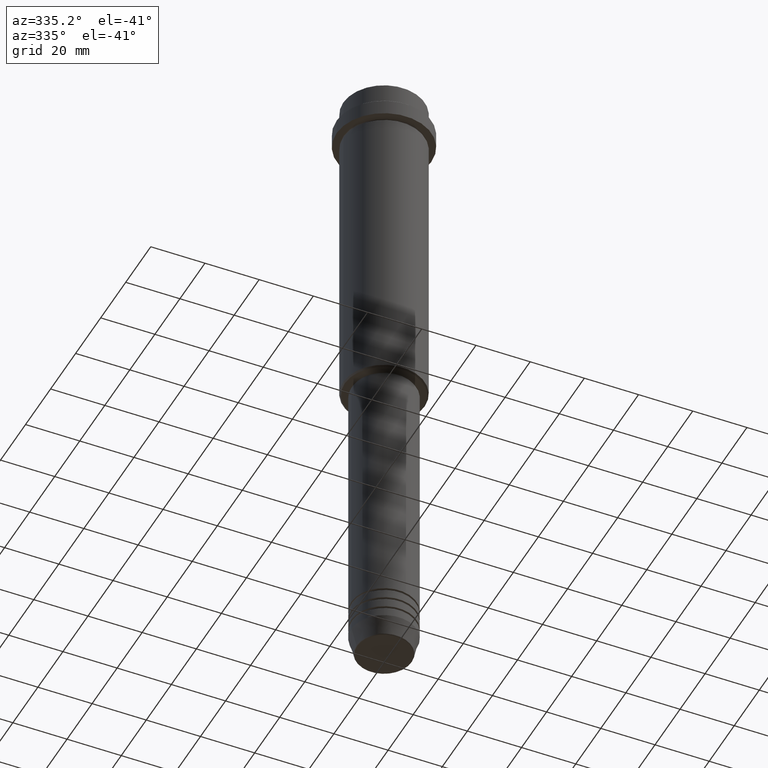
[diagram: clean part render]
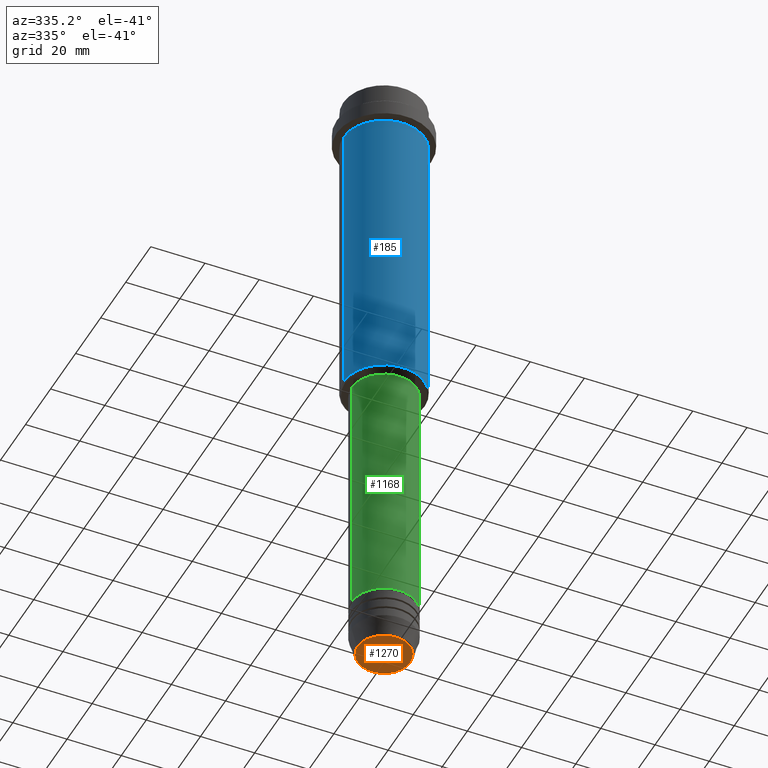
[diagram: same view with three faces highlighted in distinct colors, each labeled with its STEP entity id]
A machine part, auxiliary view with three faces highlighted in distinct colors.
Their STEP definitions:

[orange] entity #1270 — the highlighted planar face has unit normal (0, -0, 1).
#23 = VERTEX_POINT ( 'NONE', #915 ) ;
#147 = CIRCLE ( 'NONE', #949, 9.740692158992658278 ) ;
#162 = DIRECTION ( 'NONE',  ( 0.000000000000000000, 0.000000000000000000, -1.000000000000000000 ) ) ;
#169 = DIRECTION ( 'NONE',  ( 1.000000000000000000, 0.000000000000000000, 0.000000000000000000 ) ) ;
#271 = DIRECTION ( 'NONE',  ( 1.000000000000000000, 0.000000000000000000, 0.000000000000000000 ) ) ;
#282 = DIRECTION ( 'NONE',  ( 0.000000000000000000, 0.000000000000000000, -1.000000000000000000 ) ) ;
#355 = EDGE_LOOP ( 'NONE', ( #1110, #1164 ) ) ;
#718 = DIRECTION ( 'NONE',  ( 0.000000000000000000, -0.000000000000000000, 1.000000000000000000 ) ) ;
#810 = CARTESIAN_POINT ( 'NONE',  ( 0.000000000000000000, 0.000000000000000000, -240.0000000000000000 ) ) ;
#822 = FACE_OUTER_BOUND ( 'NONE', #355, .T. ) ;
#853 = CIRCLE ( 'NONE', #1194, 9.740692158992658278 ) ;
#890 = VERTEX_POINT ( 'NONE', #1246 ) ;
#911 = EDGE_CURVE ( 'NONE', #23, #890, #853, .T. ) ;
#915 = CARTESIAN_POINT ( 'NONE',  ( 9.740692158992658278, 0.000000000000000000, -240.0000000000000000 ) ) ;
#916 = PLANE ( 'NONE',  #972 ) ;
#933 = CARTESIAN_POINT ( 'NONE',  ( 0.000000000000000000, 0.000000000000000000, -240.0000000000000000 ) ) ;
#942 = DIRECTION ( 'NONE',  ( 1.000000000000000000, 0.000000000000000000, 0.000000000000000000 ) ) ;
#949 = AXIS2_PLACEMENT_3D ( 'NONE', #810, #282, #169 ) ;
#972 = AXIS2_PLACEMENT_3D ( 'NONE', #933, #718, #942 ) ;
#1110 = ORIENTED_EDGE ( 'NONE', *, *, #911, .T. ) ;
#1164 = ORIENTED_EDGE ( 'NONE', *, *, #1333, .T. ) ;
#1194 = AXIS2_PLACEMENT_3D ( 'NONE', #1266, #162, #271 ) ;
#1246 = CARTESIAN_POINT ( 'NONE',  ( -9.740692158992658278, 1.222463696683474999E-15, -240.0000000000000000 ) ) ;
#1266 = CARTESIAN_POINT ( 'NONE',  ( 0.000000000000000000, 0.000000000000000000, -240.0000000000000000 ) ) ;
#1270 = ADVANCED_FACE ( 'NONE', ( #822 ), #916, .F. ) ;
#1333 = EDGE_CURVE ( 'NONE', #890, #23, #147, .T. ) ;

[blue] entity #185 — the highlighted cylindrical surface (partial cylindrical patch) has radius 15 mm, axis along (-0, -0, 1).
#49 = VECTOR ( 'NONE', #787, 1000.000000000000000 ) ;
#71 = AXIS2_PLACEMENT_3D ( 'NONE', #611, #1174, #836 ) ;
#149 = CARTESIAN_POINT ( 'NONE',  ( -15.00000000000000355, 1.836970198721029983E-15, -16.00000000000000000 ) ) ;
#157 = CARTESIAN_POINT ( 'NONE',  ( -15.00000000000000000, 1.836970198721029589E-15, -124.4999999999999432 ) ) ;
#185 = ADVANCED_FACE ( 'NONE', ( #1393 ), #965, .T. ) ;
#243 = CIRCLE ( 'NONE', #335, 15.00000000000000000 ) ;
#268 = DIRECTION ( 'NONE',  ( -1.000000000000000000, 0.000000000000000000, 0.000000000000000000 ) ) ;
#277 = EDGE_CURVE ( 'NONE', #386, #769, #426, .T. ) ;
#335 = AXIS2_PLACEMENT_3D ( 'NONE', #500, #579, #268 ) ;
#367 = LINE ( 'NONE', #895, #49 ) ;
#386 = VERTEX_POINT ( 'NONE', #157 ) ;
#394 = CARTESIAN_POINT ( 'NONE',  ( 15.00000000000000000, 0.000000000000000000, -124.4999999999999432 ) ) ;
#398 = VECTOR ( 'NONE', #740, 1000.000000000000000 ) ;
#426 = LINE ( 'NONE', #1061, #398 ) ;
#490 = EDGE_CURVE ( 'NONE', #912, #503, #367, .T. ) ;
#500 = CARTESIAN_POINT ( 'NONE',  ( 0.000000000000000000, 0.000000000000000000, -124.4999999999999432 ) ) ;
#503 = VERTEX_POINT ( 'NONE', #1275 ) ;
#579 = DIRECTION ( 'NONE',  ( -0.000000000000000000, -0.000000000000000000, 1.000000000000000000 ) ) ;
#606 = CARTESIAN_POINT ( 'NONE',  ( 0.000000000000000000, 0.000000000000000000, -16.00000000000000000 ) ) ;
#611 = CARTESIAN_POINT ( 'NONE',  ( 0.000000000000000000, 0.000000000000000000, 0.000000000000000000 ) ) ;
#665 = CIRCLE ( 'NONE', #735, 15.00000000000000178 ) ;
#685 = ORIENTED_EDGE ( 'NONE', *, *, #824, .F. ) ;
#735 = AXIS2_PLACEMENT_3D ( 'NONE', #606, #1145, #1059 ) ;
#740 = DIRECTION ( 'NONE',  ( -0.000000000000000000, -0.000000000000000000, 1.000000000000000000 ) ) ;
#769 = VERTEX_POINT ( 'NONE', #149 ) ;
#787 = DIRECTION ( 'NONE',  ( -0.000000000000000000, -0.000000000000000000, 1.000000000000000000 ) ) ;
#824 = EDGE_CURVE ( 'NONE', #769, #503, #665, .T. ) ;
#836 = DIRECTION ( 'NONE',  ( 1.000000000000000000, 0.000000000000000000, 0.000000000000000000 ) ) ;
#895 = CARTESIAN_POINT ( 'NONE',  ( 15.00000000000000000, 0.000000000000000000, 0.000000000000000000 ) ) ;
#912 = VERTEX_POINT ( 'NONE', #394 ) ;
#965 = CYLINDRICAL_SURFACE ( 'NONE', #71, 15.00000000000000000 ) ;
#994 = ORIENTED_EDGE ( 'NONE', *, *, #490, .T. ) ;
#1027 = ORIENTED_EDGE ( 'NONE', *, *, #277, .F. ) ;
#1059 = DIRECTION ( 'NONE',  ( 1.000000000000000000, 0.000000000000000000, 0.000000000000000000 ) ) ;
#1061 = CARTESIAN_POINT ( 'NONE',  ( -15.00000000000000000, 1.836970198721029589E-15, 0.000000000000000000 ) ) ;
#1145 = DIRECTION ( 'NONE',  ( -0.000000000000000000, -0.000000000000000000, 1.000000000000000000 ) ) ;
#1154 = EDGE_LOOP ( 'NONE', ( #1027, #1345, #994, #685 ) ) ;
#1174 = DIRECTION ( 'NONE',  ( -0.000000000000000000, -0.000000000000000000, 1.000000000000000000 ) ) ;
#1275 = CARTESIAN_POINT ( 'NONE',  ( 15.00000000000000178, 0.000000000000000000, -16.00000000000000000 ) ) ;
#1345 = ORIENTED_EDGE ( 'NONE', *, *, #1395, .T. ) ;
#1393 = FACE_OUTER_BOUND ( 'NONE', #1154, .T. ) ;
#1395 = EDGE_CURVE ( 'NONE', #386, #912, #243, .T. ) ;

[green] entity #1168 — the highlighted cylindrical surface (edge-blend (fillet) strip) has radius 12 mm, axis along (-0, -0, 1).
#86 = EDGE_CURVE ( 'NONE', #1239, #727, #966, .T. ) ;
#135 = ORIENTED_EDGE ( 'NONE', *, *, #86, .T. ) ;
#153 = DIRECTION ( 'NONE',  ( -0.000000000000000000, -0.000000000000000000, 1.000000000000000000 ) ) ;
#200 = AXIS2_PLACEMENT_3D ( 'NONE', #1130, #1111, #773 ) ;
#309 = CARTESIAN_POINT ( 'NONE',  ( -12.00000000000000000, 1.469576158976823947E-15, 0.000000000000000000 ) ) ;
#350 = AXIS2_PLACEMENT_3D ( 'NONE', #419, #1067, #629 ) ;
#381 = VECTOR ( 'NONE', #840, 1000.000000000000000 ) ;
#419 = CARTESIAN_POINT ( 'NONE',  ( 0.000000000000000000, 0.000000000000000000, -220.9999999999998579 ) ) ;
#437 = CARTESIAN_POINT ( 'NONE',  ( 12.00000000000000000, 0.000000000000000000, -220.9999999999998579 ) ) ;
#450 = CIRCLE ( 'NONE', #518, 11.99999999999999822 ) ;
#453 = CARTESIAN_POINT ( 'NONE',  ( -12.00000000000000000, 1.469576158976823947E-15, -220.9999999999998579 ) ) ;
#454 = EDGE_LOOP ( 'NONE', ( #1416, #135, #732, #566 ) ) ;
#518 = AXIS2_PLACEMENT_3D ( 'NONE', #816, #153, #1355 ) ;
#560 = VERTEX_POINT ( 'NONE', #593 ) ;
#566 = ORIENTED_EDGE ( 'NONE', *, *, #1303, .F. ) ;
#592 = VERTEX_POINT ( 'NONE', #1149 ) ;
#593 = CARTESIAN_POINT ( 'NONE',  ( -11.99999999999999822, 1.469576158976823750E-15, -126.0000000000000000 ) ) ;
#629 = DIRECTION ( 'NONE',  ( 1.000000000000000000, 0.000000000000000000, 0.000000000000000000 ) ) ;
#634 = EDGE_CURVE ( 'NONE', #727, #592, #902, .T. ) ;
#673 = CARTESIAN_POINT ( 'NONE',  ( 12.00000000000000000, 0.000000000000000000, 0.000000000000000000 ) ) ;
#727 = VERTEX_POINT ( 'NONE', #437 ) ;
#732 = ORIENTED_EDGE ( 'NONE', *, *, #634, .T. ) ;
#773 = DIRECTION ( 'NONE',  ( 1.000000000000000000, 0.000000000000000000, 0.000000000000000000 ) ) ;
#816 = CARTESIAN_POINT ( 'NONE',  ( 0.000000000000000000, 0.000000000000000000, -126.0000000000000000 ) ) ;
#829 = VECTOR ( 'NONE', #974, 1000.000000000000000 ) ;
#840 = DIRECTION ( 'NONE',  ( -0.000000000000000000, -0.000000000000000000, 1.000000000000000000 ) ) ;
#862 = LINE ( 'NONE', #309, #381 ) ;
#902 = LINE ( 'NONE', #673, #829 ) ;
#955 = EDGE_CURVE ( 'NONE', #1239, #560, #862, .T. ) ;
#966 = CIRCLE ( 'NONE', #350, 12.00000000000000000 ) ;
#974 = DIRECTION ( 'NONE',  ( -0.000000000000000000, -0.000000000000000000, 1.000000000000000000 ) ) ;
#1067 = DIRECTION ( 'NONE',  ( -0.000000000000000000, -0.000000000000000000, 1.000000000000000000 ) ) ;
#1111 = DIRECTION ( 'NONE',  ( -0.000000000000000000, -0.000000000000000000, 1.000000000000000000 ) ) ;
#1123 = CYLINDRICAL_SURFACE ( 'NONE', #200, 12.00000000000000000 ) ;
#1130 = CARTESIAN_POINT ( 'NONE',  ( 0.000000000000000000, 0.000000000000000000, 0.000000000000000000 ) ) ;
#1149 = CARTESIAN_POINT ( 'NONE',  ( 11.99999999999999822, 0.000000000000000000, -126.0000000000000000 ) ) ;
#1168 = ADVANCED_FACE ( 'NONE', ( #1315 ), #1123, .T. ) ;
#1239 = VERTEX_POINT ( 'NONE', #453 ) ;
#1303 = EDGE_CURVE ( 'NONE', #560, #592, #450, .T. ) ;
#1315 = FACE_OUTER_BOUND ( 'NONE', #454, .T. ) ;
#1355 = DIRECTION ( 'NONE',  ( 1.000000000000000000, 0.000000000000000000, 0.000000000000000000 ) ) ;
#1416 = ORIENTED_EDGE ( 'NONE', *, *, #955, .F. ) ;